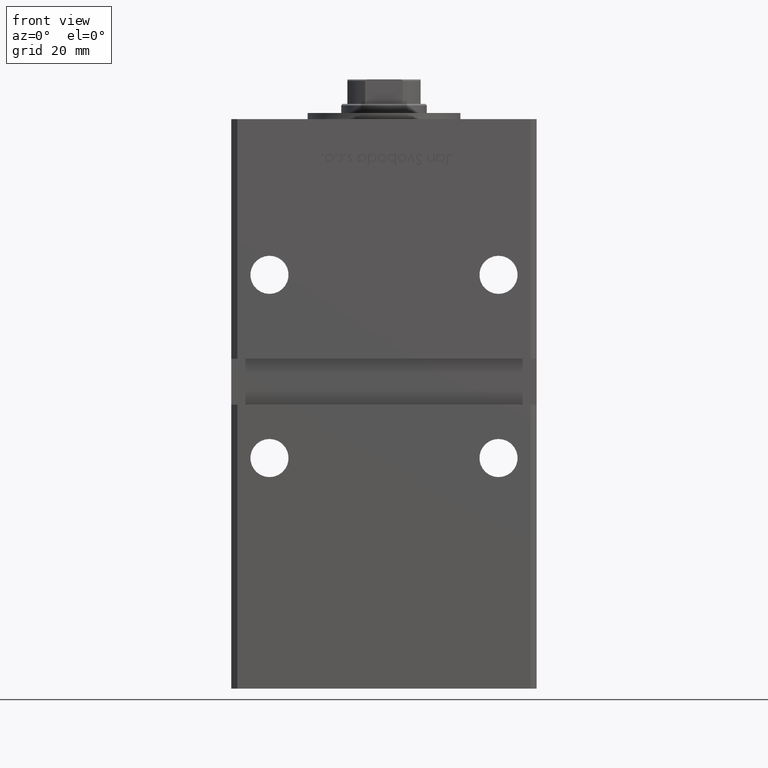
[diagram: clean part render]
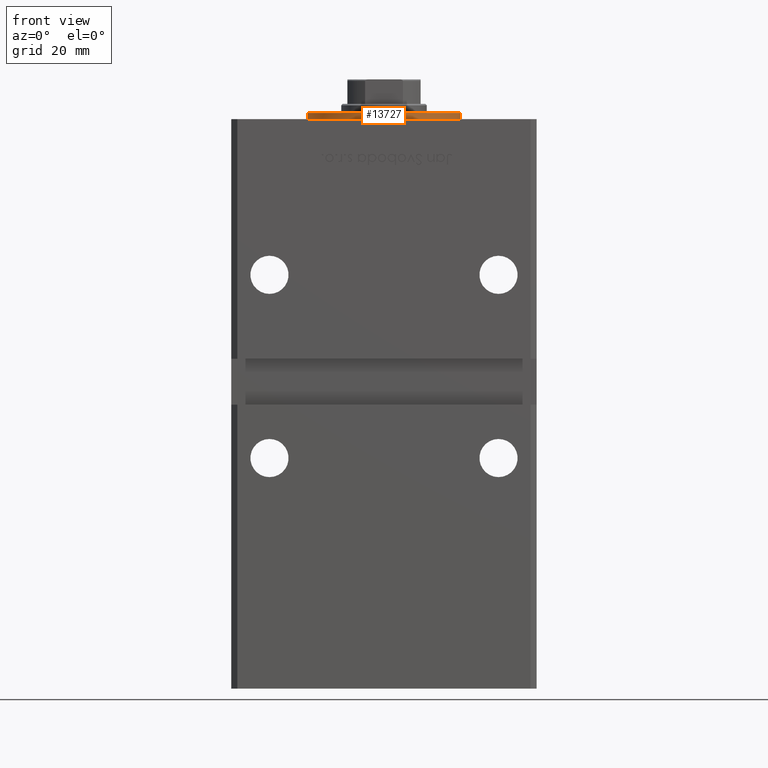
[diagram: same view with one face highlighted and labeled with its STEP entity id]
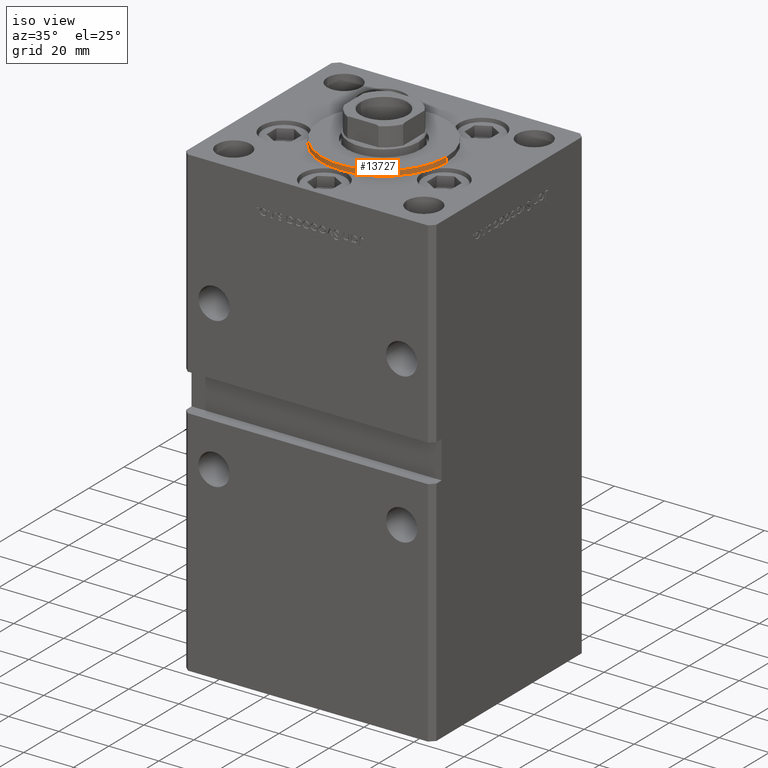
[diagram: same view with one face highlighted and labeled with its STEP entity id]
A machine part, front view. The second image highlights one B-rep face of the part: STEP entity #13727.
A second angle (iso view) of the same face is appended — the face is thin or edge-on in the first view.
In plain terms, the highlighted cylindrical surface (partial cylindrical patch) has radius 25 mm, axis along (-0, -0, -1).
Its self-contained STEP definition (entity closure, byte-faithful):
#2755 = CIRCLE ( 'NONE', #16514, 25.00000000000000000 ) ;
#3836 = DIRECTION ( 'NONE',  ( 0.000000000000000000, 0.000000000000000000, 1.000000000000000000 ) ) ;
#7743 = AXIS2_PLACEMENT_3D ( 'NONE', #25291, #21785, #37666 ) ;
#8360 = DIRECTION ( 'NONE',  ( -0.000000000000000000, -0.000000000000000000, -1.000000000000000000 ) ) ;
#9387 = CARTESIAN_POINT ( 'NONE',  ( 25.00000000000000000, -3.877276906038844941E-15, 2.000000000000000000 ) ) ;
#9773 = CARTESIAN_POINT ( 'NONE',  ( 0.000000000000000000, -25.00000000000000000, 0.000000000000000000 ) ) ;
#10598 = DIRECTION ( 'NONE',  ( 1.000000000000000000, 0.000000000000000000, 0.000000000000000000 ) ) ;
#11010 = VERTEX_POINT ( 'NONE', #21985 ) ;
#13036 = ORIENTED_EDGE ( 'NONE', *, *, #35420, .T. ) ;
#13727 = ADVANCED_FACE ( 'NONE', ( #18007 ), #41709, .T. ) ;
#13750 = EDGE_CURVE ( 'NONE', #23714, #20804, #26645, .T. ) ;
#15561 = ORIENTED_EDGE ( 'NONE', *, *, #17579, .T. ) ;
#16425 = DIRECTION ( 'NONE',  ( 0.000000000000000000, 0.000000000000000000, 1.000000000000000000 ) ) ;
#16455 = CARTESIAN_POINT ( 'NONE',  ( -25.00000000000000000, -6.938893903907228378E-15, 2.000000000000000000 ) ) ;
#16514 = AXIS2_PLACEMENT_3D ( 'NONE', #25017, #16425, #32314 ) ;
#16741 = CARTESIAN_POINT ( 'NONE',  ( 0.000000000000000000, -6.938893903907228378E-15, 0.000000000000000000 ) ) ;
#17579 = EDGE_CURVE ( 'NONE', #47749, #23714, #50855, .T. ) ;
#18007 = FACE_OUTER_BOUND ( 'NONE', #26156, .T. ) ;
#18711 = EDGE_CURVE ( 'NONE', #11010, #47749, #2755, .T. ) ;
#19137 = VERTEX_POINT ( 'NONE', #22780 ) ;
#19402 = EDGE_CURVE ( 'NONE', #44994, #19137, #31024, .T. ) ;
#20043 = ORIENTED_EDGE ( 'NONE', *, *, #19402, .F. ) ;
#20092 = EDGE_CURVE ( 'NONE', #44994, #11010, #52804, .T. ) ;
#20804 = VERTEX_POINT ( 'NONE', #28319 ) ;
#21242 = CARTESIAN_POINT ( 'NONE',  ( 0.000000000000000000, -6.938893903907228378E-15, 2.000000000000000000 ) ) ;
#21785 = DIRECTION ( 'NONE',  ( 0.000000000000000000, 0.000000000000000000, 1.000000000000000000 ) ) ;
#21985 = CARTESIAN_POINT ( 'NONE',  ( -25.00000000000000000, -6.938893903907228378E-15, 0.000000000000000000 ) ) ;
#22307 = DIRECTION ( 'NONE',  ( -0.000000000000000000, -0.000000000000000000, -1.000000000000000000 ) ) ;
#22780 = CARTESIAN_POINT ( 'NONE',  ( 25.00000000000000000, -3.877276906038844941E-15, 2.000000000000000000 ) ) ;
#23197 = ORIENTED_EDGE ( 'NONE', *, *, #20092, .T. ) ;
#23714 = VERTEX_POINT ( 'NONE', #9773 ) ;
#24990 = VECTOR ( 'NONE', #8360, 1000.000000000000000 ) ;
#25017 = CARTESIAN_POINT ( 'NONE',  ( 0.000000000000000000, -6.938893903907228378E-15, 0.000000000000000000 ) ) ;
#25291 = CARTESIAN_POINT ( 'NONE',  ( 0.000000000000000000, -6.938893903907228378E-15, 0.000000000000000000 ) ) ;
#25524 = CARTESIAN_POINT ( 'NONE',  ( -23.57022603955158502, -8.333333333333332149, 0.000000000000000000 ) ) ;
#25611 = DIRECTION ( 'NONE',  ( 1.000000000000000000, 0.000000000000000000, 0.000000000000000000 ) ) ;
#26156 = EDGE_LOOP ( 'NONE', ( #36521, #20043, #23197, #35189, #15561, #39198, #13036 ) ) ;
#26645 = CIRCLE ( 'NONE', #7743, 25.00000000000000000 ) ;
#28319 = CARTESIAN_POINT ( 'NONE',  ( 23.57022603955158502, -8.333333333333332149, 0.000000000000000000 ) ) ;
#29114 = DIRECTION ( 'NONE',  ( 1.000000000000000000, 0.000000000000000000, 0.000000000000000000 ) ) ;
#29134 = DIRECTION ( 'NONE',  ( 0.000000000000000000, 0.000000000000000000, 1.000000000000000000 ) ) ;
#31024 = CIRCLE ( 'NONE', #49094, 25.00000000000000000 ) ;
#32314 = DIRECTION ( 'NONE',  ( 1.000000000000000000, 0.000000000000000000, 0.000000000000000000 ) ) ;
#33522 = AXIS2_PLACEMENT_3D ( 'NONE', #21242, #22307, #50582 ) ;
#33671 = VERTEX_POINT ( 'NONE', #42281 ) ;
#34559 = DIRECTION ( 'NONE',  ( 0.000000000000000000, 0.000000000000000000, 1.000000000000000000 ) ) ;
#34715 = EDGE_CURVE ( 'NONE', #19137, #33671, #37926, .T. ) ;
#35189 = ORIENTED_EDGE ( 'NONE', *, *, #18711, .T. ) ;
#35420 = EDGE_CURVE ( 'NONE', #20804, #33671, #42954, .T. ) ;
#36521 = ORIENTED_EDGE ( 'NONE', *, *, #34715, .F. ) ;
#37654 = DIRECTION ( 'NONE',  ( -0.000000000000000000, -0.000000000000000000, -1.000000000000000000 ) ) ;
#37666 = DIRECTION ( 'NONE',  ( 1.000000000000000000, 0.000000000000000000, 0.000000000000000000 ) ) ;
#37926 = LINE ( 'NONE', #9387, #53256 ) ;
#39198 = ORIENTED_EDGE ( 'NONE', *, *, #13750, .T. ) ;
#41402 = AXIS2_PLACEMENT_3D ( 'NONE', #16741, #3836, #29114 ) ;
#41709 = CYLINDRICAL_SURFACE ( 'NONE', #33522, 25.00000000000000000 ) ;
#42281 = CARTESIAN_POINT ( 'NONE',  ( 25.00000000000000000, -3.877276906038844941E-15, 0.000000000000000000 ) ) ;
#42954 = CIRCLE ( 'NONE', #49827, 25.00000000000000000 ) ;
#43440 = CARTESIAN_POINT ( 'NONE',  ( 0.000000000000000000, -6.938893903907228378E-15, 2.000000000000000000 ) ) ;
#44994 = VERTEX_POINT ( 'NONE', #45386 ) ;
#45386 = CARTESIAN_POINT ( 'NONE',  ( -25.00000000000000000, -6.938893903907228378E-15, 2.000000000000000000 ) ) ;
#45556 = CARTESIAN_POINT ( 'NONE',  ( 0.000000000000000000, -6.938893903907228378E-15, 0.000000000000000000 ) ) ;
#47749 = VERTEX_POINT ( 'NONE', #25524 ) ;
#49094 = AXIS2_PLACEMENT_3D ( 'NONE', #43440, #34559, #10598 ) ;
#49827 = AXIS2_PLACEMENT_3D ( 'NONE', #45556, #29134, #25611 ) ;
#50582 = DIRECTION ( 'NONE',  ( -1.000000000000000000, 0.000000000000000000, 0.000000000000000000 ) ) ;
#50855 = CIRCLE ( 'NONE', #41402, 25.00000000000000000 ) ;
#52804 = LINE ( 'NONE', #16455, #24990 ) ;
#53256 = VECTOR ( 'NONE', #37654, 1000.000000000000000 ) ;